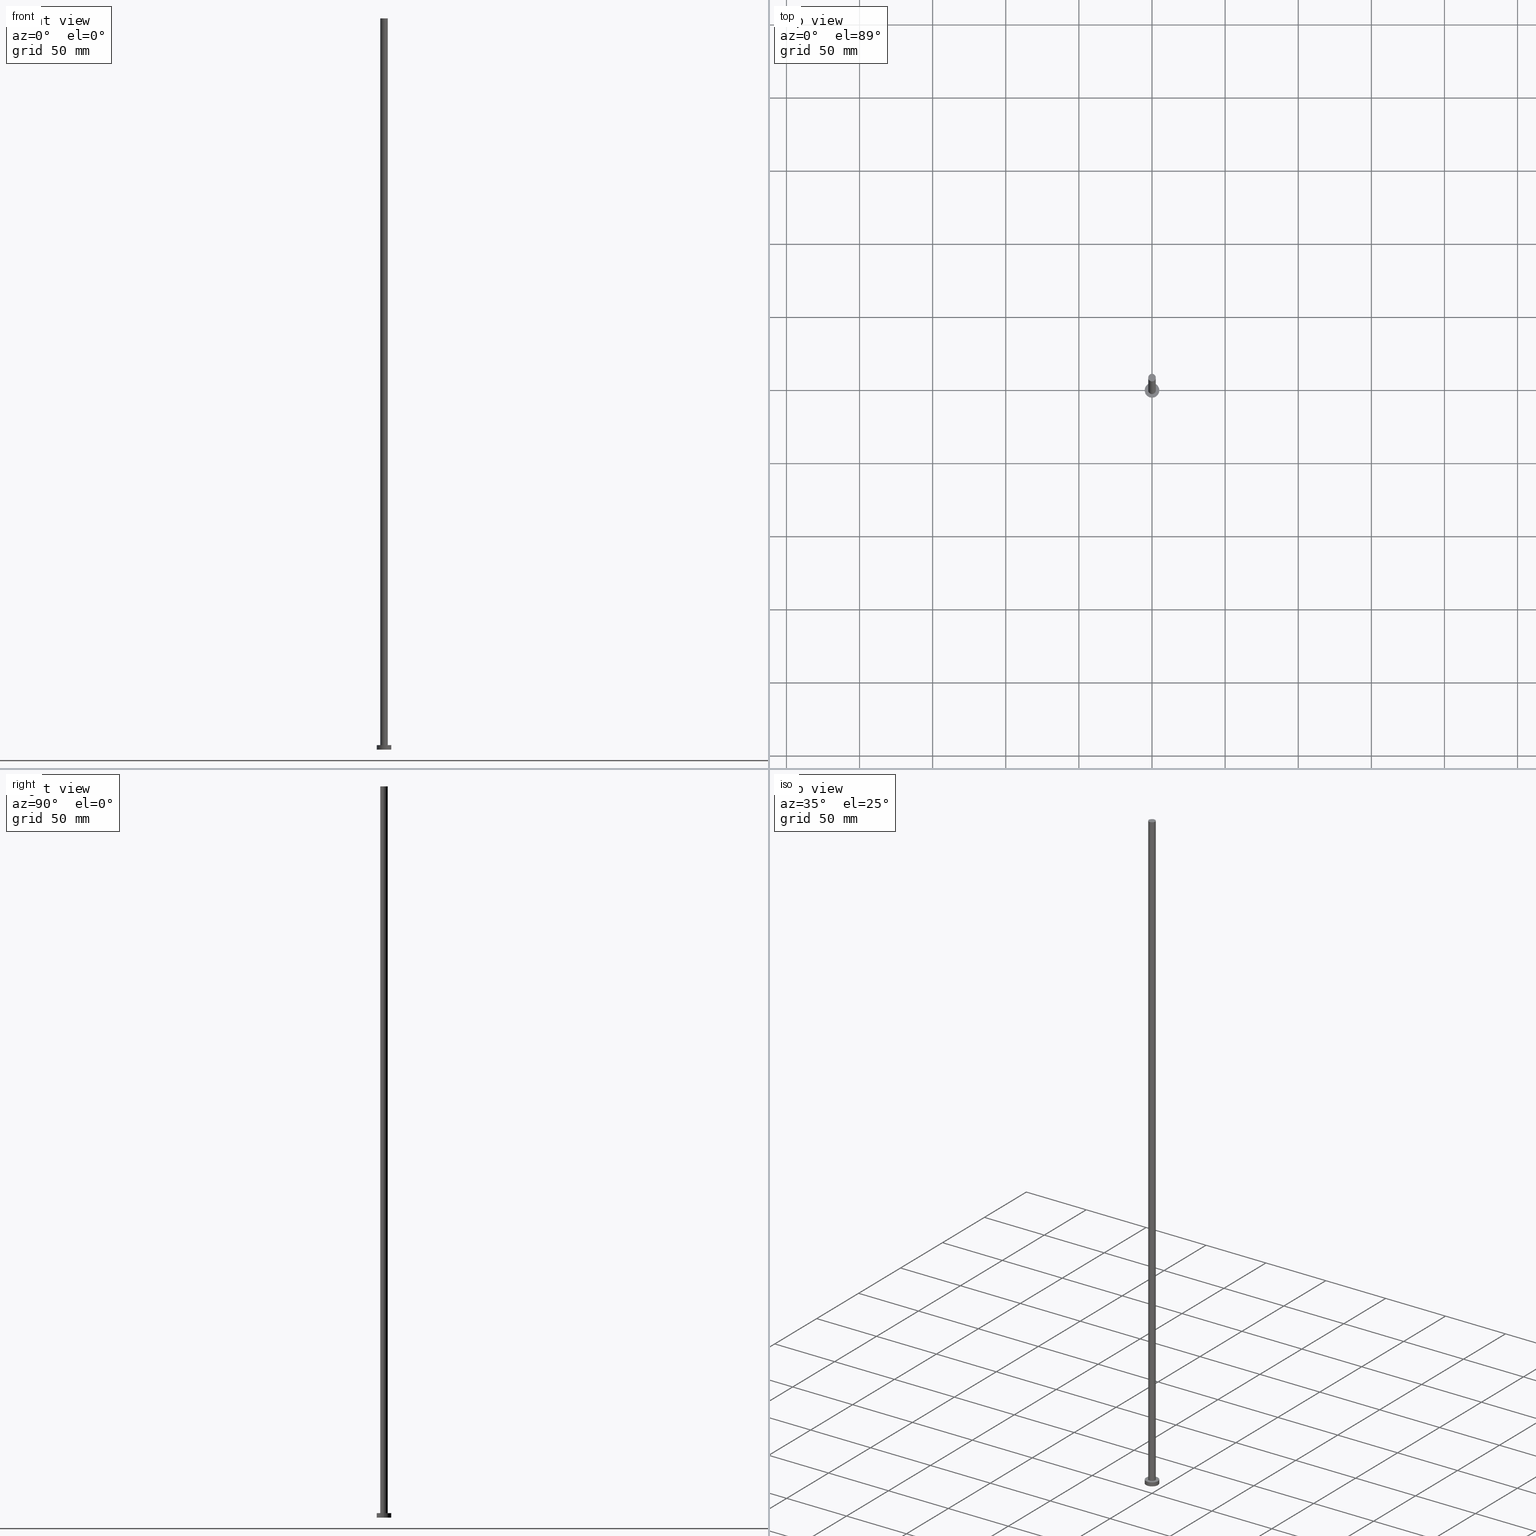
[diagram: canonical four-view strip — front | top / right | iso, engineering-drawing reading convention]
A machine part, canonical four-view strip (front | top / right | iso — engineering-drawing reading convention). The complete STEP part file that produces these views, byte-faithful:
ISO-10303-21;
HEADER;
FILE_DESCRIPTION (( 'STEP AP203' ),
    '1' );
FILE_NAME ('591d.STEP',
    '2023-02-12T12:26:50',
    ( '' ),
    ( '' ),
    'SwSTEP 2.0',
    'SolidWorks 2019',
    '' );
FILE_SCHEMA (( 'CONFIG_CONTROL_DESIGN' ));
ENDSEC;

DATA;
#1 = CARTESIAN_POINT ( 'NONE',  ( 0.000000000000000000, 0.000000000000000000, 3.000000000000000000 ) ) ;
#2 = CC_DESIGN_DATE_AND_TIME_ASSIGNMENT ( #11, #145, ( #130 ) ) ;
#3 = AXIS2_PLACEMENT_3D ( 'NONE', #220, #206, #29 ) ;
#4 = EDGE_LOOP ( 'NONE', ( #109, #132, #153, #183 ) ) ;
#5 = FACE_OUTER_BOUND ( 'NONE', #36, .T. ) ;
#6 = PLANE ( 'NONE',  #111 ) ;
#7 = DIRECTION ( 'NONE',  ( -1.000000000000000000, 0.000000000000000000, 0.000000000000000000 ) ) ;
#8 = APPROVAL_DATE_TIME ( #117, #250 ) ;
#9 = EDGE_CURVE ( 'NONE', #155, #62, #239, .T. ) ;
#10 = ORIENTED_EDGE ( 'NONE', *, *, #222, .F. ) ;
#11 = DATE_AND_TIME ( #189, #139 ) ;
#12 = DIRECTION ( 'NONE',  ( 0.000000000000000000, 0.000000000000000000, 1.000000000000000000 ) ) ;
#13 = APPROVAL_DATE_TIME ( #32, #24 ) ;
#14 = EDGE_CURVE ( 'NONE', #237, #53, #135, .T. ) ;
#15 = APPROVAL_ROLE ( '' ) ;
#16 = DIRECTION ( 'NONE',  ( -0.000000000000000000, -0.000000000000000000, -1.000000000000000000 ) ) ;
#17 = CC_DESIGN_SECURITY_CLASSIFICATION ( #130, ( #97 ) ) ;
#18 = APPROVAL_STATUS ( 'not_yet_approved' ) ;
#19 = EDGE_CURVE ( 'NONE', #237, #155, #31, .T. ) ;
#20 = CARTESIAN_POINT ( 'NONE',  ( -2.600000000000000089, 0.000000000000000000, 500.0000000000000000 ) ) ;
#21 = CARTESIAN_POINT ( 'NONE',  ( 2.600000000000000089, 3.184081677783117698E-16, 500.0000000000000000 ) ) ;
#22 = ORIENTED_EDGE ( 'NONE', *, *, #55, .T. ) ;
#23 = VERTEX_POINT ( 'NONE', #179 ) ;
#24 = APPROVAL ( #174, 'NEUR�EN�' ) ;
#25 = CARTESIAN_POINT ( 'NONE',  ( 5.000000000000000000, 6.123233995736766282E-16, 3.000000000000000000 ) ) ;
#26 = VERTEX_POINT ( 'NONE', #175 ) ;
#27 = CARTESIAN_POINT ( 'NONE',  ( 5.000000000000000000, 6.123233995736766282E-16, 3.000000000000000000 ) ) ;
#28 = EDGE_CURVE ( 'NONE', #23, #26, #157, .T. ) ;
#29 = DIRECTION ( 'NONE',  ( -1.000000000000000000, 0.000000000000000000, 0.000000000000000000 ) ) ;
#30 = CALENDAR_DATE ( 2023, 12, 2 ) ;
#31 = LINE ( 'NONE', #20, #74 ) ;
#32 = DATE_AND_TIME ( #70, #71 ) ;
#33 = DATE_TIME_ROLE ( 'creation_date' ) ;
#34 = EDGE_CURVE ( 'NONE', #26, #23, #46, .T. ) ;
#35 = DIRECTION ( 'NONE',  ( -0.000000000000000000, -0.000000000000000000, -1.000000000000000000 ) ) ;
#36 = EDGE_LOOP ( 'NONE', ( #112, #255 ) ) ;
#37 = APPROVAL_ROLE ( '' ) ;
#38 = EDGE_CURVE ( 'NONE', #60, #182, #218, .T. ) ;
#39 = ORIENTED_EDGE ( 'NONE', *, *, #19, .F. ) ;
#40 = EDGE_LOOP ( 'NONE', ( #59, #106 ) ) ;
#41 = DIRECTION ( 'NONE',  ( -0.000000000000000000, -0.000000000000000000, -1.000000000000000000 ) ) ;
#42 = ORIENTED_EDGE ( 'NONE', *, *, #140, .T. ) ;
#43 = DIRECTION ( 'NONE',  ( -0.000000000000000000, -0.000000000000000000, -1.000000000000000000 ) ) ;
#44 = DIRECTION ( 'NONE',  ( 0.000000000000000000, 0.000000000000000000, 1.000000000000000000 ) ) ;
#45 = PERSON_AND_ORGANIZATION ( #67, #167 ) ;
#46 = CIRCLE ( 'NONE', #150, 5.000000000000000000 ) ;
#47 = PERSON_AND_ORGANIZATION ( #67, #167 ) ;
#48 = PERSON_AND_ORGANIZATION ( #67, #167 ) ;
#49 =( LENGTH_UNIT ( ) NAMED_UNIT ( * ) SI_UNIT ( .MILLI., .METRE. ) );
#50 = APPROVAL_STATUS ( 'not_yet_approved' ) ;
#51 = CC_DESIGN_PERSON_AND_ORGANIZATION_ASSIGNMENT ( #48, #141, ( #130 ) ) ;
#52 = EDGE_LOOP ( 'NONE', ( #199, #251, #248, #129 ) ) ;
#53 = VERTEX_POINT ( 'NONE', #234 ) ;
#54 = DIRECTION ( 'NONE',  ( 1.000000000000000000, 0.000000000000000000, 0.000000000000000000 ) ) ;
#55 = EDGE_CURVE ( 'NONE', #62, #155, #125, .T. ) ;
#56 = PRODUCT_DEFINITION_SHAPE ( 'NONE', 'NONE',  #246 ) ;
#57 = APPROVAL_PERSON_ORGANIZATION ( #148, #124, #37 ) ;
#58 = DIRECTION ( 'NONE',  ( 0.000000000000000000, 0.000000000000000000, 1.000000000000000000 ) ) ;
#59 = ORIENTED_EDGE ( 'NONE', *, *, #9, .F. ) ;
#60 = VERTEX_POINT ( 'NONE', #27 ) ;
#61 = EDGE_CURVE ( 'NONE', #182, #23, #224, .T. ) ;
#62 = VERTEX_POINT ( 'NONE', #244 ) ;
#63 = ADVANCED_FACE ( 'NONE', ( #169 ), #136, .T. ) ;
#64 = CARTESIAN_POINT ( 'NONE',  ( 0.000000000000000000, 0.000000000000000000, 3.000000000000000000 ) ) ;
#65 = CYLINDRICAL_SURFACE ( 'NONE', #3, 2.600000000000000089 ) ;
#66 = DIRECTION ( 'NONE',  ( 1.000000000000000000, 0.000000000000000000, 0.000000000000000000 ) ) ;
#67 = PERSON ( 'NEUR�EN�', 'NEUR�EN�', 'NEUR�EN�', ('NEUR�EN�'), ('NEUR�EN�'), ('NEUR�EN�') ) ;
#68 = PRODUCT_RELATED_PRODUCT_CATEGORY ( 'detail', '', ( #253 ) ) ;
#69 = VECTOR ( 'NONE', #41, 1000.000000000000000 ) ;
#70 = CALENDAR_DATE ( 2023, 12, 2 ) ;
#71 = LOCAL_TIME ( 13, 26, 50.00000000000000000, #194 ) ;
#72 = COORDINATED_UNIVERSAL_TIME_OFFSET ( 1, 0, .AHEAD. ) ;
#73 = APPLICATION_CONTEXT ( 'configuration controlled 3d designs of mechanical parts and assemblies' ) ;
#74 = VECTOR ( 'NONE', #16, 1000.000000000000000 ) ;
#75 = DIRECTION ( 'NONE',  ( 1.000000000000000000, 0.000000000000000000, 0.000000000000000000 ) ) ;
#76 = DIRECTION ( 'NONE',  ( 0.000000000000000000, 0.000000000000000000, 1.000000000000000000 ) ) ;
#77 = CALENDAR_DATE ( 2023, 12, 2 ) ;
#78 = APPLICATION_CONTEXT ( 'configuration controlled 3d designs of mechanical parts and assemblies' ) ;
#79 = CYLINDRICAL_SURFACE ( 'NONE', #200, 5.000000000000000000 ) ;
#80 = LOCAL_TIME ( 13, 26, 50.00000000000000000, #72 ) ;
#81 = CC_DESIGN_PERSON_AND_ORGANIZATION_ASSIGNMENT ( #45, #172, ( #253 ) ) ;
#82 = ORIENTED_EDGE ( 'NONE', *, *, #178, .F. ) ;
#83 = AXIS2_PLACEMENT_3D ( 'NONE', #64, #44, #54 ) ;
#84 = ORIENTED_EDGE ( 'NONE', *, *, #61, .T. ) ;
#85 = DIRECTION ( 'NONE',  ( 1.000000000000000000, 0.000000000000000000, -0.000000000000000000 ) ) ;
#86 = ORIENTED_EDGE ( 'NONE', *, *, #14, .T. ) ;
#87 = CARTESIAN_POINT ( 'NONE',  ( 0.000000000000000000, 0.000000000000000000, 500.0000000000000000 ) ) ;
#88 = CARTESIAN_POINT ( 'NONE',  ( 0.000000000000000000, 0.000000000000000000, 500.0000000000000000 ) ) ;
#89 = ADVANCED_FACE ( 'NONE', ( #116, #5 ), #149, .T. ) ;
#90 = CARTESIAN_POINT ( 'NONE',  ( 0.000000000000000000, 0.000000000000000000, 0.000000000000000000 ) ) ;
#91 = AXIS2_PLACEMENT_3D ( 'NONE', #99, #171, #192 ) ;
#92 = CC_DESIGN_APPROVAL ( #250, ( #97 ) ) ;
#93 = CC_DESIGN_DATE_AND_TIME_ASSIGNMENT ( #231, #33, ( #246 ) ) ;
#94 = PERSON_AND_ORGANIZATION_ROLE ( 'creator' ) ;
#95 = APPLICATION_PROTOCOL_DEFINITION ( 'international standard', 'config_control_design', 1994, #78 ) ;
#96 = PERSON_AND_ORGANIZATION_ROLE ( 'creator' ) ;
#97 = PRODUCT_DEFINITION_FORMATION_WITH_SPECIFIED_SOURCE ( 'LIBOVOLN�', '', #253, .NOT_KNOWN. ) ;
#98 = MANIFOLD_SOLID_BREP ( 'P�idat vysunut�m3', #232 ) ;
#99 = CARTESIAN_POINT ( 'NONE',  ( 0.000000000000000000, 0.000000000000000000, 0.000000000000000000 ) ) ;
#100 = ORIENTED_EDGE ( 'NONE', *, *, #164, .F. ) ;
#101 = APPROVAL_DATE_TIME ( #238, #124 ) ;
#102 = CARTESIAN_POINT ( 'NONE',  ( 0.000000000000000000, 0.000000000000000000, 3.000000000000000000 ) ) ;
#103 = CIRCLE ( 'NONE', #228, 2.600000000000000089 ) ;
#104 = COORDINATED_UNIVERSAL_TIME_OFFSET ( 1, 0, .AHEAD. ) ;
#105 = DIRECTION ( 'NONE',  ( 0.000000000000000000, 0.000000000000000000, 1.000000000000000000 ) ) ;
#106 = ORIENTED_EDGE ( 'NONE', *, *, #55, .F. ) ;
#107 = UNCERTAINTY_MEASURE_WITH_UNIT (LENGTH_MEASURE( 1.000000000000000082E-05 ), #49, 'distance_accuracy_value', 'NONE');
#108 = ADVANCED_FACE ( 'NONE', ( #236 ), #6, .T. ) ;
#109 = ORIENTED_EDGE ( 'NONE', *, *, #140, .F. ) ;
#110 = LINE ( 'NONE', #21, #233 ) ;
#111 = AXIS2_PLACEMENT_3D ( 'NONE', #88, #154, #223 ) ;
#112 = ORIENTED_EDGE ( 'NONE', *, *, #178, .T. ) ;
#113 = AXIS2_PLACEMENT_3D ( 'NONE', #170, #180, #66 ) ;
#114 = DIRECTION ( 'NONE',  ( -1.000000000000000000, 0.000000000000000000, 0.000000000000000000 ) ) ;
#115 = LINE ( 'NONE', #25, #177 ) ;
#116 = FACE_BOUND ( 'NONE', #40, .T. ) ;
#117 = DATE_AND_TIME ( #30, #240 ) ;
#118 = PERSON_AND_ORGANIZATION_ROLE ( 'design_supplier' ) ;
#119 = DIRECTION ( 'NONE',  ( 0.000000000000000000, 0.000000000000000000, 1.000000000000000000 ) ) ;
#120 = PERSON_AND_ORGANIZATION ( #67, #167 ) ;
#121 = AXIS2_PLACEMENT_3D ( 'NONE', #90, #58, #185 ) ;
#122 = CARTESIAN_POINT ( 'NONE',  ( -2.600000000000000089, 0.000000000000000000, 500.0000000000000000 ) ) ;
#123 = DIRECTION ( 'NONE',  ( 1.000000000000000000, 0.000000000000000000, 0.000000000000000000 ) ) ;
#124 = APPROVAL ( #18, 'NEUR�EN�' ) ;
#125 = CIRCLE ( 'NONE', #83, 2.600000000000000089 ) ;
#126 = FACE_OUTER_BOUND ( 'NONE', #221, .T. ) ;
#127 = CC_DESIGN_PERSON_AND_ORGANIZATION_ASSIGNMENT ( #47, #96, ( #246 ) ) ;
#128 = AXIS2_PLACEMENT_3D ( 'NONE', #195, #146, #197 ) ;
#129 = ORIENTED_EDGE ( 'NONE', *, *, #61, .F. ) ;
#130 = SECURITY_CLASSIFICATION ( '', '', #210 ) ;
#131 = PLANE ( 'NONE',  #121 ) ;
#132 = ORIENTED_EDGE ( 'NONE', *, *, #14, .F. ) ;
#133 = ADVANCED_FACE ( 'NONE', ( #187 ), #79, .T. ) ;
#134 = CARTESIAN_POINT ( 'NONE',  ( -2.600000000000000089, 0.000000000000000000, 3.000000000000000000 ) ) ;
#135 = CIRCLE ( 'NONE', #128, 2.600000000000000089 ) ;
#136 = CYLINDRICAL_SURFACE ( 'NONE', #181, 2.600000000000000089 ) ;
#137 = PERSON_AND_ORGANIZATION ( #67, #167 ) ;
#138 = CALENDAR_DATE ( 2023, 12, 2 ) ;
#139 = LOCAL_TIME ( 13, 26, 50.00000000000000000, #211 ) ;
#140 = EDGE_CURVE ( 'NONE', #53, #62, #110, .T. ) ;
#141 = PERSON_AND_ORGANIZATION_ROLE ( 'classification_officer' ) ;
#142 = DIRECTION ( 'NONE',  ( 1.000000000000000000, 0.000000000000000000, 0.000000000000000000 ) ) ;
#143 = DIRECTION ( 'NONE',  ( -1.000000000000000000, 0.000000000000000000, 0.000000000000000000 ) ) ;
#144 = CC_DESIGN_APPROVAL ( #24, ( #246 ) ) ;
#145 = DATE_TIME_ROLE ( 'classification_date' ) ;
#146 = DIRECTION ( 'NONE',  ( 0.000000000000000000, 0.000000000000000000, 1.000000000000000000 ) ) ;
#147 = DIRECTION ( 'NONE',  ( -0.000000000000000000, -0.000000000000000000, -1.000000000000000000 ) ) ;
#148 = PERSON_AND_ORGANIZATION ( #67, #167 ) ;
#149 = PLANE ( 'NONE',  #214 ) ;
#150 = AXIS2_PLACEMENT_3D ( 'NONE', #191, #12, #142 ) ;
#151 = ORIENTED_EDGE ( 'NONE', *, *, #34, .F. ) ;
#152 = CC_DESIGN_PERSON_AND_ORGANIZATION_ASSIGNMENT ( #229, #118, ( #97 ) ) ;
#153 = ORIENTED_EDGE ( 'NONE', *, *, #19, .T. ) ;
#154 = DIRECTION ( 'NONE',  ( 0.000000000000000000, 0.000000000000000000, 1.000000000000000000 ) ) ;
#155 = VERTEX_POINT ( 'NONE', #134 ) ;
#156 = CARTESIAN_POINT ( 'NONE',  ( -5.000000000000000000, 0.000000000000000000, 3.000000000000000000 ) ) ;
#157 = CIRCLE ( 'NONE', #165, 5.000000000000000000 ) ;
#158 = ADVANCED_FACE ( 'NONE', ( #159 ), #131, .F. ) ;
#159 = FACE_OUTER_BOUND ( 'NONE', #219, .T. ) ;
#160 = CARTESIAN_POINT ( 'NONE',  ( 0.000000000000000000, 0.000000000000000000, 3.000000000000000000 ) ) ;
#161 = MECHANICAL_CONTEXT ( 'NONE', #78, 'mechanical' ) ;
#162 = COORDINATED_UNIVERSAL_TIME_OFFSET ( 1, 0, .AHEAD. ) ;
#163 =( NAMED_UNIT ( * ) SI_UNIT ( $, .STERADIAN. ) SOLID_ANGLE_UNIT ( ) );
#164 = EDGE_CURVE ( 'NONE', #53, #237, #103, .T. ) ;
#165 = AXIS2_PLACEMENT_3D ( 'NONE', #230, #119, #75 ) ;
#166 = DIRECTION ( 'NONE',  ( 0.000000000000000000, 0.000000000000000000, 1.000000000000000000 ) ) ;
#167 = ORGANIZATION ( 'NEUR�EN�', 'NEUR�EN�', '' ) ;
#168 = ORIENTED_EDGE ( 'NONE', *, *, #28, .T. ) ;
#169 = FACE_OUTER_BOUND ( 'NONE', #4, .T. ) ;
#170 = CARTESIAN_POINT ( 'NONE',  ( 0.000000000000000000, 0.000000000000000000, 3.000000000000000000 ) ) ;
#171 = DIRECTION ( 'NONE',  ( 0.000000000000000000, 0.000000000000000000, 1.000000000000000000 ) ) ;
#172 = PERSON_AND_ORGANIZATION_ROLE ( 'design_owner' ) ;
#173 = APPROVAL_PERSON_ORGANIZATION ( #137, #250, #15 ) ;
#174 = APPROVAL_STATUS ( 'not_yet_approved' ) ;
#175 = CARTESIAN_POINT ( 'NONE',  ( 5.000000000000000000, 6.123233995736766282E-16, 0.000000000000000000 ) ) ;
#176 = AXIS2_PLACEMENT_3D ( 'NONE', #205, #241, #226 ) ;
#177 = VECTOR ( 'NONE', #35, 1000.000000000000000 ) ;
#178 = EDGE_CURVE ( 'NONE', #182, #60, #215, .T. ) ;
#179 = CARTESIAN_POINT ( 'NONE',  ( -5.000000000000000000, 0.000000000000000000, 0.000000000000000000 ) ) ;
#180 = DIRECTION ( 'NONE',  ( 0.000000000000000000, 0.000000000000000000, 1.000000000000000000 ) ) ;
#181 = AXIS2_PLACEMENT_3D ( 'NONE', #87, #43, #114 ) ;
#182 = VERTEX_POINT ( 'NONE', #254 ) ;
#183 = ORIENTED_EDGE ( 'NONE', *, *, #9, .T. ) ;
#184 = CARTESIAN_POINT ( 'NONE',  ( 0.000000000000000000, 0.000000000000000000, 3.000000000000000000 ) ) ;
#185 = DIRECTION ( 'NONE',  ( 1.000000000000000000, 0.000000000000000000, -0.000000000000000000 ) ) ;
#186 = DIRECTION ( 'NONE',  ( -0.000000000000000000, -0.000000000000000000, -1.000000000000000000 ) ) ;
#187 = FACE_OUTER_BOUND ( 'NONE', #52, .T. ) ;
#188 = PERSON_AND_ORGANIZATION ( #67, #167 ) ;
#189 = CALENDAR_DATE ( 2023, 12, 2 ) ;
#190 = AXIS2_PLACEMENT_3D ( 'NONE', #102, #76, #123 ) ;
#191 = CARTESIAN_POINT ( 'NONE',  ( 0.000000000000000000, 0.000000000000000000, 0.000000000000000000 ) ) ;
#192 = DIRECTION ( 'NONE',  ( 1.000000000000000000, 0.000000000000000000, 0.000000000000000000 ) ) ;
#193 = APPROVAL_PERSON_ORGANIZATION ( #120, #24, #245 ) ;
#194 = COORDINATED_UNIVERSAL_TIME_OFFSET ( 1, 0, .AHEAD. ) ;
#195 = CARTESIAN_POINT ( 'NONE',  ( 0.000000000000000000, 0.000000000000000000, 500.0000000000000000 ) ) ;
#196 = EDGE_LOOP ( 'NONE', ( #86, #202 ) ) ;
#197 = DIRECTION ( 'NONE',  ( 1.000000000000000000, 0.000000000000000000, 0.000000000000000000 ) ) ;
#198 = CYLINDRICAL_SURFACE ( 'NONE', #249, 5.000000000000000000 ) ;
#199 = ORIENTED_EDGE ( 'NONE', *, *, #38, .F. ) ;
#200 = AXIS2_PLACEMENT_3D ( 'NONE', #1, #147, #7 ) ;
#201 = DESIGN_CONTEXT ( 'detailed design', #73, 'design' ) ;
#202 = ORIENTED_EDGE ( 'NONE', *, *, #164, .T. ) ;
#203 = CARTESIAN_POINT ( 'NONE',  ( 0.000000000000000000, 0.000000000000000000, 500.0000000000000000 ) ) ;
#204 = ORIENTED_EDGE ( 'NONE', *, *, #28, .F. ) ;
#205 = CARTESIAN_POINT ( 'NONE',  ( 0.000000000000000000, 0.000000000000000000, 3.000000000000000000 ) ) ;
#206 = DIRECTION ( 'NONE',  ( -0.000000000000000000, -0.000000000000000000, -1.000000000000000000 ) ) ;
#207 = APPLICATION_PROTOCOL_DEFINITION ( 'international standard', 'config_control_design', 1994, #73 ) ;
#208 = CC_DESIGN_PERSON_AND_ORGANIZATION_ASSIGNMENT ( #188, #94, ( #97 ) ) ;
#209 =( GEOMETRIC_REPRESENTATION_CONTEXT ( 3 ) GLOBAL_UNCERTAINTY_ASSIGNED_CONTEXT ( ( #107 ) ) GLOBAL_UNIT_ASSIGNED_CONTEXT ( ( #49, #212, #163 ) ) REPRESENTATION_CONTEXT ( 'NONE', 'WORKASPACE' ) );
#210 = SECURITY_CLASSIFICATION_LEVEL ( 'unclassified' ) ;
#211 = COORDINATED_UNIVERSAL_TIME_OFFSET ( 1, 0, .AHEAD. ) ;
#212 =( NAMED_UNIT ( * ) PLANE_ANGLE_UNIT ( ) SI_UNIT ( $, .RADIAN. ) );
#213 = SHAPE_DEFINITION_REPRESENTATION ( #56, #252 ) ;
#214 = AXIS2_PLACEMENT_3D ( 'NONE', #184, #105, #85 ) ;
#215 = CIRCLE ( 'NONE', #113, 5.000000000000000000 ) ;
#216 = DIRECTION ( 'NONE',  ( 1.000000000000000000, 0.000000000000000000, 0.000000000000000000 ) ) ;
#217 = ADVANCED_FACE ( 'NONE', ( #243 ), #65, .T. ) ;
#218 = CIRCLE ( 'NONE', #176, 5.000000000000000000 ) ;
#219 = EDGE_LOOP ( 'NONE', ( #204, #151 ) ) ;
#220 = CARTESIAN_POINT ( 'NONE',  ( 0.000000000000000000, 0.000000000000000000, 500.0000000000000000 ) ) ;
#221 = EDGE_LOOP ( 'NONE', ( #10, #82, #84, #168 ) ) ;
#222 = EDGE_CURVE ( 'NONE', #60, #26, #115, .T. ) ;
#223 = DIRECTION ( 'NONE',  ( 1.000000000000000000, 0.000000000000000000, -0.000000000000000000 ) ) ;
#224 = LINE ( 'NONE', #156, #69 ) ;
#225 = CC_DESIGN_APPROVAL ( #124, ( #130 ) ) ;
#226 = DIRECTION ( 'NONE',  ( 1.000000000000000000, 0.000000000000000000, 0.000000000000000000 ) ) ;
#227 = ADVANCED_FACE ( 'NONE', ( #126 ), #198, .T. ) ;
#228 = AXIS2_PLACEMENT_3D ( 'NONE', #203, #166, #216 ) ;
#229 = PERSON_AND_ORGANIZATION ( #67, #167 ) ;
#230 = CARTESIAN_POINT ( 'NONE',  ( 0.000000000000000000, 0.000000000000000000, 0.000000000000000000 ) ) ;
#231 = DATE_AND_TIME ( #138, #80 ) ;
#232 = CLOSED_SHELL ( 'NONE', ( #217, #133, #227, #89, #158, #63, #108 ) ) ;
#233 = VECTOR ( 'NONE', #186, 1000.000000000000000 ) ;
#234 = CARTESIAN_POINT ( 'NONE',  ( 2.600000000000000089, 3.184081677783117698E-16, 500.0000000000000000 ) ) ;
#235 = LOCAL_TIME ( 13, 26, 50.00000000000000000, #104 ) ;
#236 = FACE_OUTER_BOUND ( 'NONE', #196, .T. ) ;
#237 = VERTEX_POINT ( 'NONE', #122 ) ;
#238 = DATE_AND_TIME ( #77, #235 ) ;
#239 = CIRCLE ( 'NONE', #190, 2.600000000000000089 ) ;
#240 = LOCAL_TIME ( 13, 26, 50.00000000000000000, #162 ) ;
#241 = DIRECTION ( 'NONE',  ( 0.000000000000000000, 0.000000000000000000, 1.000000000000000000 ) ) ;
#242 = EDGE_LOOP ( 'NONE', ( #100, #42, #22, #39 ) ) ;
#243 = FACE_OUTER_BOUND ( 'NONE', #242, .T. ) ;
#244 = CARTESIAN_POINT ( 'NONE',  ( 2.600000000000000089, 3.184081677783117698E-16, 3.000000000000000000 ) ) ;
#245 = APPROVAL_ROLE ( '' ) ;
#246 = PRODUCT_DEFINITION ( 'NEZN�M�', '', #97, #201 ) ;
#247 = DIRECTION ( 'NONE',  ( -0.000000000000000000, -0.000000000000000000, -1.000000000000000000 ) ) ;
#248 = ORIENTED_EDGE ( 'NONE', *, *, #34, .T. ) ;
#249 = AXIS2_PLACEMENT_3D ( 'NONE', #160, #247, #143 ) ;
#250 = APPROVAL ( #50, 'NEUR�EN�' ) ;
#251 = ORIENTED_EDGE ( 'NONE', *, *, #222, .T. ) ;
#252 = ADVANCED_BREP_SHAPE_REPRESENTATION ( '591d', ( #98, #91 ), #209 ) ;
#253 = PRODUCT ( '591d', '591d', '', ( #161 ) ) ;
#254 = CARTESIAN_POINT ( 'NONE',  ( -5.000000000000000000, 0.000000000000000000, 3.000000000000000000 ) ) ;
#255 = ORIENTED_EDGE ( 'NONE', *, *, #38, .T. ) ;
ENDSEC;
END-ISO-10303-21;
